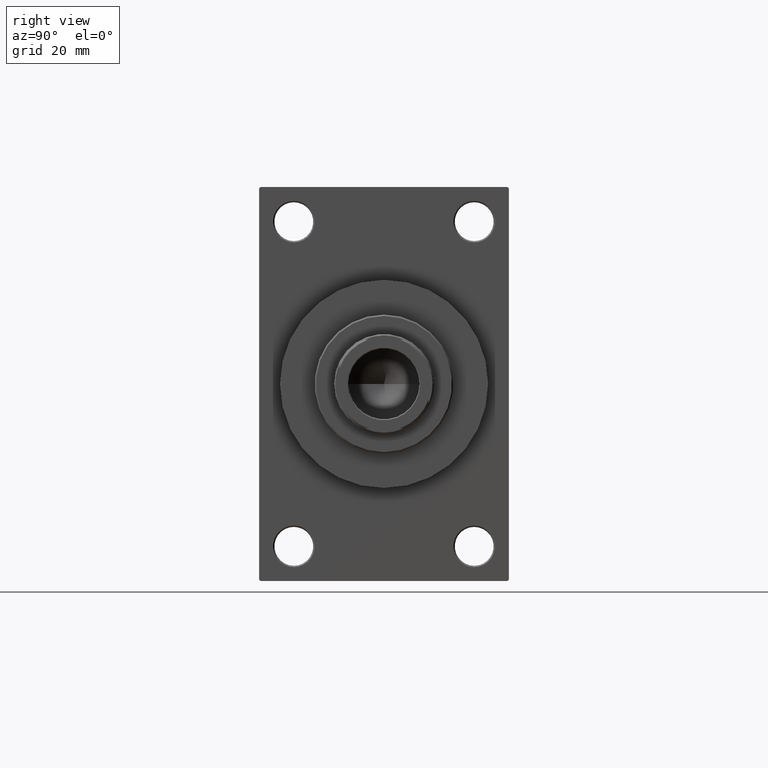
[diagram: clean part render]
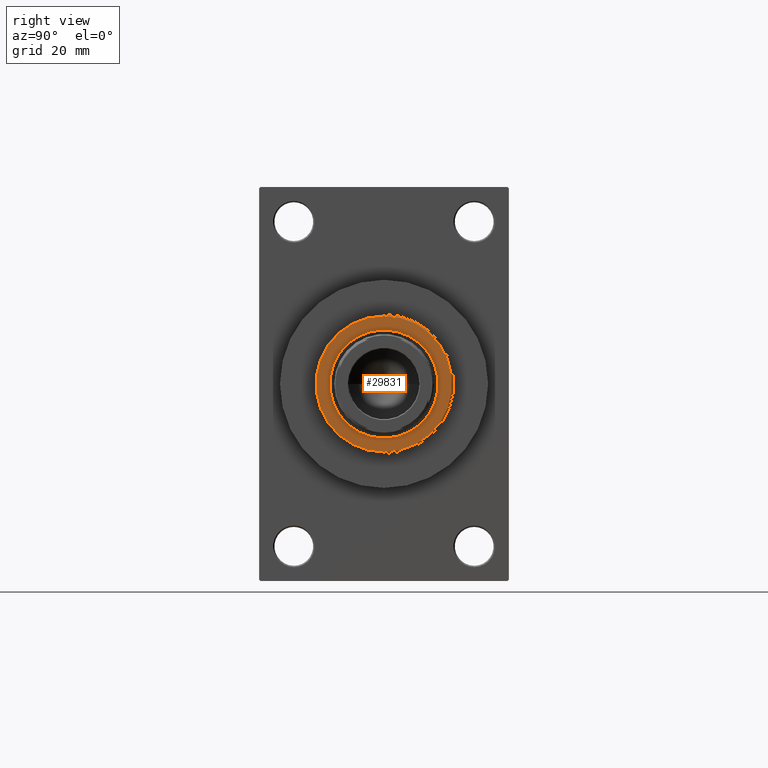
[diagram: same view with one face highlighted and labeled with its STEP entity id]
A machine part, right view. The second image highlights one B-rep face of the part: STEP entity #29831.
In plain terms, the highlighted planar face has unit normal (1, -0, -0).
Its self-contained STEP definition (entity closure, byte-faithful):
#626 = CIRCLE ( 'NONE', #6715, 19.50000000000000000 ) ;
#5058 = CARTESIAN_POINT ( 'NONE',  ( 0.000000000000000000, 0.000000000000000000, 55.26000000000000512 ) ) ;
#6123 = CARTESIAN_POINT ( 'NONE',  ( 0.000000000000000000, 0.000000000000000000, 55.26000000000000512 ) ) ;
#6715 = AXIS2_PLACEMENT_3D ( 'NONE', #44839, #23360, #19763 ) ;
#7920 = DIRECTION ( 'NONE',  ( 1.000000000000000000, 0.000000000000000000, 0.000000000000000000 ) ) ;
#8441 = ORIENTED_EDGE ( 'NONE', *, *, #32903, .T. ) ;
#9473 = DIRECTION ( 'NONE',  ( 0.000000000000000000, 0.000000000000000000, 1.000000000000000000 ) ) ;
#12623 = CARTESIAN_POINT ( 'NONE',  ( 0.000000000000000000, 0.000000000000000000, 55.26000000000000512 ) ) ;
#12718 = EDGE_LOOP ( 'NONE', ( #8441, #40860 ) ) ;
#13086 = DIRECTION ( 'NONE',  ( 0.000000000000000000, 0.000000000000000000, 1.000000000000000000 ) ) ;
#13249 = VERTEX_POINT ( 'NONE', #16380 ) ;
#13283 = PLANE ( 'NONE',  #42527 ) ;
#13521 = DIRECTION ( 'NONE',  ( 1.000000000000000000, 0.000000000000000000, -0.000000000000000000 ) ) ;
#14436 = AXIS2_PLACEMENT_3D ( 'NONE', #5058, #19617, #7920 ) ;
#14640 = CARTESIAN_POINT ( 'NONE',  ( -19.50000000000000000, 2.388061258337338939E-15, 55.26000000000000512 ) ) ;
#15455 = ORIENTED_EDGE ( 'NONE', *, *, #40711, .F. ) ;
#16380 = CARTESIAN_POINT ( 'NONE',  ( 24.50000000000001066, 3.031000827889700044E-15, 55.26000000000000512 ) ) ;
#16743 = CIRCLE ( 'NONE', #14436, 24.50000000000001066 ) ;
#17250 = DIRECTION ( 'NONE',  ( 1.000000000000000000, 0.000000000000000000, 0.000000000000000000 ) ) ;
#17586 = CARTESIAN_POINT ( 'NONE',  ( 19.50000000000000000, 0.000000000000000000, 55.26000000000000512 ) ) ;
#18360 = CIRCLE ( 'NONE', #46578, 19.50000000000000000 ) ;
#18447 = VERTEX_POINT ( 'NONE', #17586 ) ;
#19617 = DIRECTION ( 'NONE',  ( 0.000000000000000000, 0.000000000000000000, 1.000000000000000000 ) ) ;
#19763 = DIRECTION ( 'NONE',  ( 1.000000000000000000, 0.000000000000000000, 0.000000000000000000 ) ) ;
#23019 = ORIENTED_EDGE ( 'NONE', *, *, #30524, .F. ) ;
#23360 = DIRECTION ( 'NONE',  ( 0.000000000000000000, 0.000000000000000000, 1.000000000000000000 ) ) ;
#23386 = DIRECTION ( 'NONE',  ( 1.000000000000000000, 0.000000000000000000, 0.000000000000000000 ) ) ;
#23481 = CARTESIAN_POINT ( 'NONE',  ( 0.000000000000000000, 0.000000000000000000, 55.26000000000000512 ) ) ;
#23734 = CARTESIAN_POINT ( 'NONE',  ( -24.50000000000001066, 0.000000000000000000, 55.26000000000000512 ) ) ;
#24285 = FACE_OUTER_BOUND ( 'NONE', #12718, .T. ) ;
#24526 = FACE_BOUND ( 'NONE', #24851, .T. ) ;
#24851 = EDGE_LOOP ( 'NONE', ( #23019, #15455 ) ) ;
#29831 = ADVANCED_FACE ( 'NONE', ( #24526, #24285 ), #13283, .T. ) ;
#30524 = EDGE_CURVE ( 'NONE', #18447, #42783, #626, .T. ) ;
#32903 = EDGE_CURVE ( 'NONE', #45043, #13249, #37914, .T. ) ;
#37914 = CIRCLE ( 'NONE', #40947, 24.50000000000001066 ) ;
#37942 = EDGE_CURVE ( 'NONE', #13249, #45043, #16743, .T. ) ;
#40711 = EDGE_CURVE ( 'NONE', #42783, #18447, #18360, .T. ) ;
#40860 = ORIENTED_EDGE ( 'NONE', *, *, #37942, .T. ) ;
#40947 = AXIS2_PLACEMENT_3D ( 'NONE', #23481, #41845, #17250 ) ;
#41845 = DIRECTION ( 'NONE',  ( 0.000000000000000000, 0.000000000000000000, 1.000000000000000000 ) ) ;
#42527 = AXIS2_PLACEMENT_3D ( 'NONE', #6123, #9473, #13521 ) ;
#42783 = VERTEX_POINT ( 'NONE', #14640 ) ;
#44839 = CARTESIAN_POINT ( 'NONE',  ( 0.000000000000000000, 0.000000000000000000, 55.26000000000000512 ) ) ;
#45043 = VERTEX_POINT ( 'NONE', #23734 ) ;
#46578 = AXIS2_PLACEMENT_3D ( 'NONE', #12623, #13086, #23386 ) ;